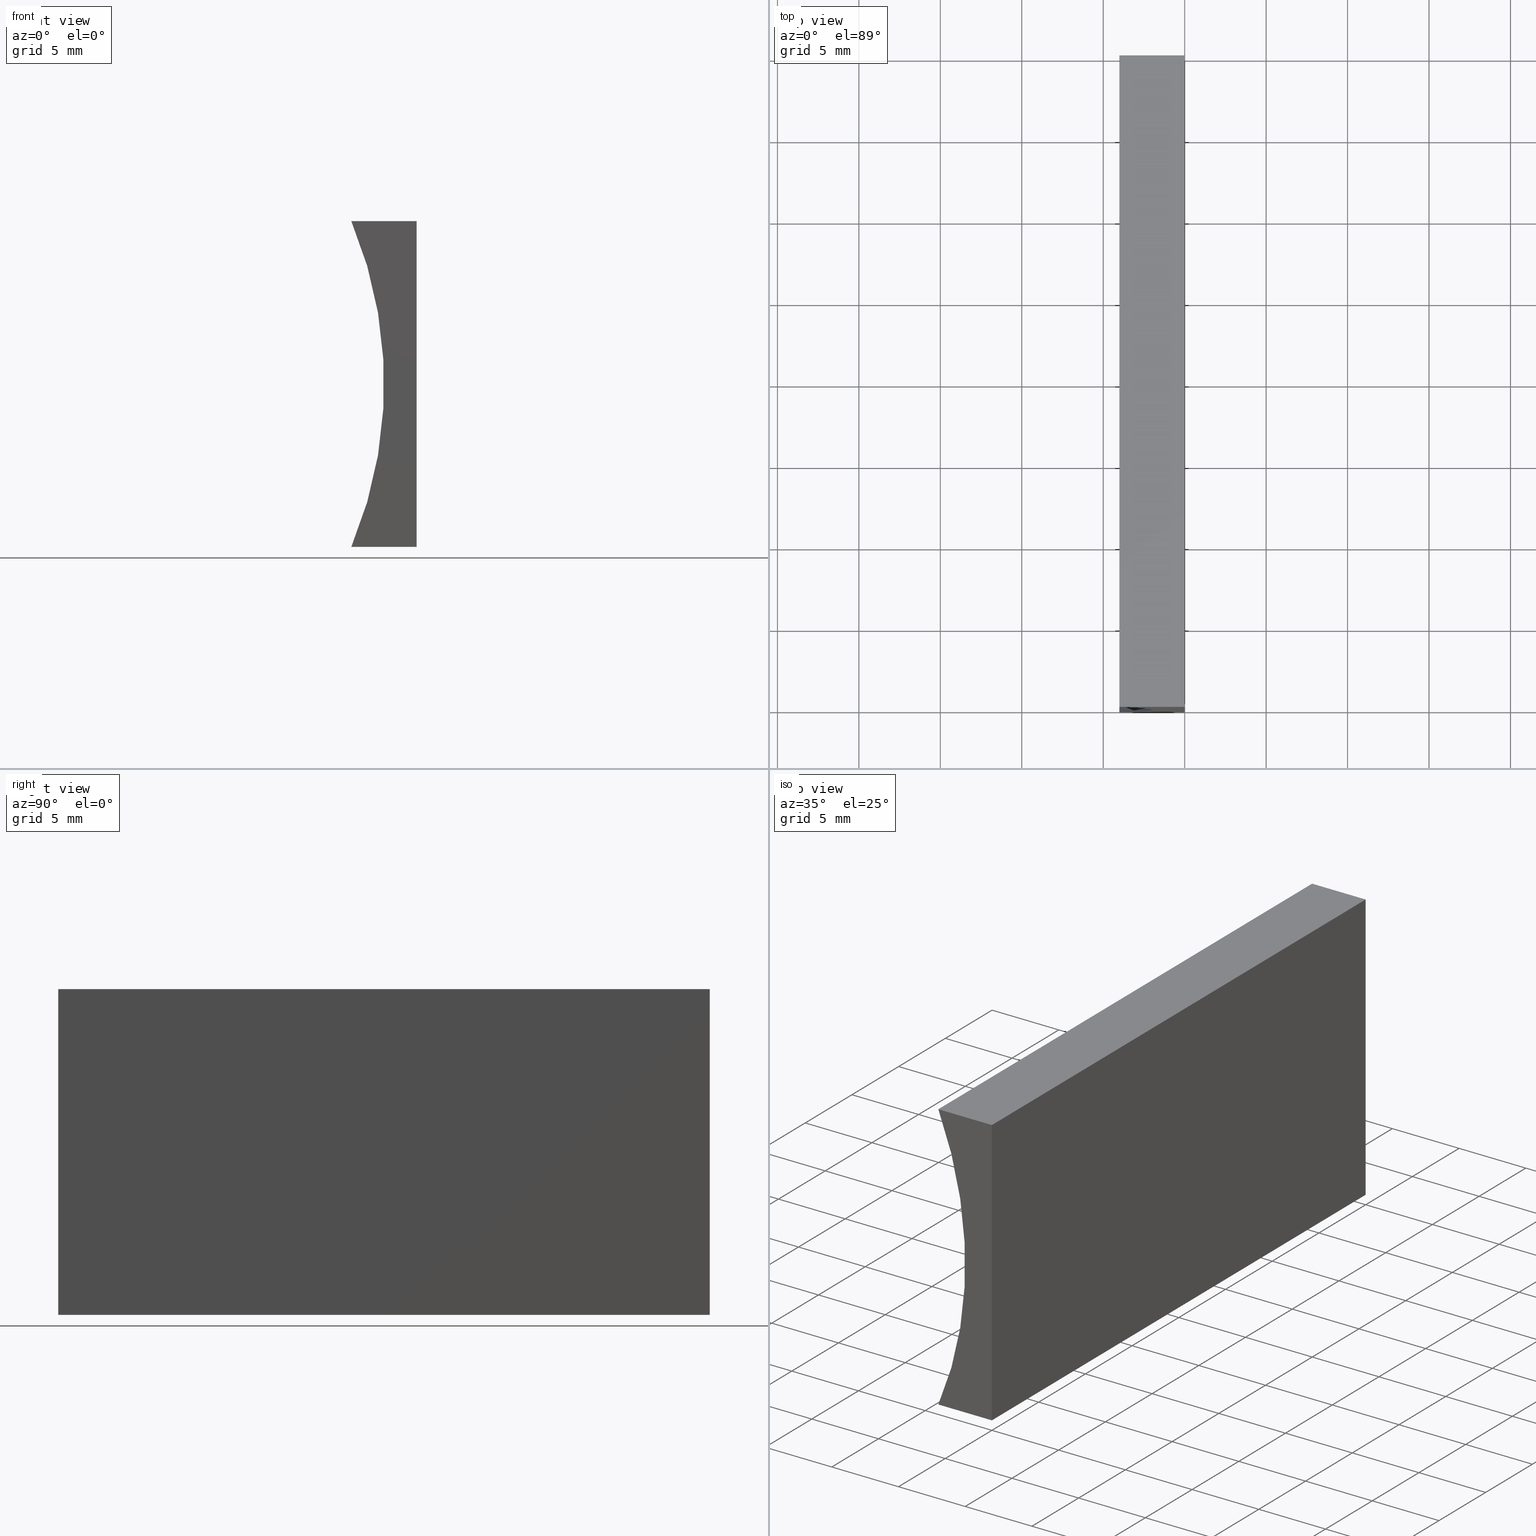
[diagram: canonical four-view strip — front | top / right | iso, engineering-drawing reading convention]
A machine part, canonical four-view strip (front | top / right | iso — engineering-drawing reading convention). The complete STEP part file that produces these views, byte-faithful:
ISO-10303-21;
HEADER;
FILE_DESCRIPTION (( 'STEP AP214' ),
    '1' );
FILE_NAME ('155355.STEP',
    '2019-06-28T06:38:43',
    ( 'user' ),
    ( '΢���й�' ),
    'SwSTEP 2.0',
    'SolidWorks 2016',
    '' );
FILE_SCHEMA (( 'AUTOMOTIVE_DESIGN' ));
ENDSEC;

DATA;
#1 = DIRECTION ( 'NONE',  ( 0.0000000000000000000, 0.0000000000000000000, 1.000000000000000000 ) ) ;
#2 = AXIS2_PLACEMENT_3D ( 'NONE', #64, #192, #1 ) ;
#3 = FILL_AREA_STYLE_COLOUR ( '', #142 ) ;
#4 = FILL_AREA_STYLE ('',( #3 ) ) ;
#5 = ORIENTED_EDGE ( 'NONE', *, *, #176, .T. ) ;
#6 = LINE ( 'NONE', #25, #141 ) ;
#7 =( LENGTH_UNIT ( ) NAMED_UNIT ( * ) SI_UNIT ( .MILLI., .METRE. ) );
#8 = PLANE ( 'NONE',  #158 ) ;
#9 = FACE_OUTER_BOUND ( 'NONE', #95, .T. ) ;
#10 = CARTESIAN_POINT ( 'NONE',  ( -4.012581935117213800, 40.00000000000000000, 5.204170427930421300E-015 ) ) ;
#11 = ORIENTED_EDGE ( 'NONE', *, *, #113, .T. ) ;
#12 = EDGE_CURVE ( 'NONE', #93, #101, #32, .T. ) ;
#13 = CLOSED_SHELL ( 'NONE', ( #177, #82, #87, #162, #129, #38 ) ) ;
#14 = PLANE ( 'NONE',  #71 ) ;
#15 = SURFACE_STYLE_FILL_AREA ( #4 ) ;
#16 = ORIENTED_EDGE ( 'NONE', *, *, #78, .F. ) ;
#17 = EDGE_CURVE ( 'NONE', #24, #190, #99, .T. ) ;
#18 = VECTOR ( 'NONE', #165, 1000.000000000000000 ) ;
#19 = LINE ( 'NONE', #198, #115 ) ;
#20 = AXIS2_PLACEMENT_3D ( 'NONE', #175, #92, #55 ) ;
#21 = CARTESIAN_POINT ( 'NONE',  ( 0.0000000000000000000, 40.00000000000000000, 0.0000000000000000000 ) ) ;
#22 = ORIENTED_EDGE ( 'NONE', *, *, #104, .F. ) ;
#23 = DIRECTION ( 'NONE',  ( 8.646420205378973500E-016, 0.0000000000000000000, -1.000000000000000000 ) ) ;
#24 = VERTEX_POINT ( 'NONE', #159 ) ;
#25 = CARTESIAN_POINT ( 'NONE',  ( -4.012581935117213000, 40.00000000000000000, 19.99999999999999600 ) ) ;
#26 = VERTEX_POINT ( 'NONE', #10 ) ;
#27 = DIRECTION ( 'NONE',  ( -1.000000000000000000, 0.0000000000000000000, 8.646420205378970500E-016 ) ) ;
#28 = CARTESIAN_POINT ( 'NONE',  ( -27.85000000000000100, 0.0000000000000000000, 10.00000000000000200 ) ) ;
#29 = ORIENTED_EDGE ( 'NONE', *, *, #201, .F. ) ;
#30 = PRESENTATION_STYLE_ASSIGNMENT (( #52 ) ) ;
#31 = DIRECTION ( 'NONE',  ( 0.0000000000000000000, 0.0000000000000000000, 1.000000000000000000 ) ) ;
#32 = LINE ( 'NONE', #202, #139 ) ;
#33 = EDGE_CURVE ( 'NONE', #26, #93, #80, .T. ) ;
#34 = CARTESIAN_POINT ( 'NONE',  ( 0.0000000000000000000, 40.00000000000000000, 0.0000000000000000000 ) ) ;
#35 = CYLINDRICAL_SURFACE ( 'NONE', #119, 25.85000000000000100 ) ;
#36 = APPLICATION_PROTOCOL_DEFINITION ( 'draft international standard', 'automotive_design', 1998, #67 ) ;
#37 = CARTESIAN_POINT ( 'NONE',  ( -27.85000000000000100, 40.00000000000000000, 10.00000000000000200 ) ) ;
#38 = ADVANCED_FACE ( 'NONE', ( #161 ), #14, .F. ) ;
#39 = ORIENTED_EDGE ( 'NONE', *, *, #113, .F. ) ;
#40 = ORIENTED_EDGE ( 'NONE', *, *, #86, .T. ) ;
#41 = SURFACE_STYLE_FILL_AREA ( #111 ) ;
#42 = CARTESIAN_POINT ( 'NONE',  ( 1.224646799147353300E-015, 40.00000000000000000, 20.00000000000000000 ) ) ;
#43 = SURFACE_SIDE_STYLE ('',( #15 ) ) ;
#44 = PRODUCT_DEFINITION_SHAPE ( 'NONE', 'NONE',  #183 ) ;
#45 = ORIENTED_EDGE ( 'NONE', *, *, #12, .F. ) ;
#46 = VECTOR ( 'NONE', #54, 1000.000000000000000 ) ;
#47 = AXIS2_PLACEMENT_3D ( 'NONE', #37, #50, #31 ) ;
#48 = ORIENTED_EDGE ( 'NONE', *, *, #170, .F. ) ;
#49 = ORIENTED_EDGE ( 'NONE', *, *, #79, .T. ) ;
#50 = DIRECTION ( 'NONE',  ( -0.0000000000000000000, -1.000000000000000000, -0.0000000000000000000 ) ) ;
#51 = CARTESIAN_POINT ( 'NONE',  ( 0.0000000000000000000, 0.0000000000000000000, 0.0000000000000000000 ) ) ;
#52 = SURFACE_STYLE_USAGE ( .BOTH. , #43 ) ;
#53 = AXIS2_PLACEMENT_3D ( 'NONE', #51, #116, #132 ) ;
#54 = DIRECTION ( 'NONE',  ( -6.123233995736766000E-017, -0.0000000000000000000, -1.000000000000000000 ) ) ;
#55 = DIRECTION ( 'NONE',  ( 0.0000000000000000000, -0.0000000000000000000, 1.000000000000000000 ) ) ;
#56 = ORIENTED_EDGE ( 'NONE', *, *, #79, .F. ) ;
#57 = ORIENTED_EDGE ( 'NONE', *, *, #86, .F. ) ;
#58 = DIRECTION ( 'NONE',  ( 0.0000000000000000000, -0.0000000000000000000, 1.000000000000000000 ) ) ;
#59 = DIRECTION ( 'NONE',  ( 6.123233995736766000E-017, 0.0000000000000000000, 1.000000000000000000 ) ) ;
#60 = UNCERTAINTY_MEASURE_WITH_UNIT (LENGTH_MEASURE( 1.000000000000000100E-005 ), #169, 'distance_accuracy_value', 'NONE');
#61 = EDGE_LOOP ( 'NONE', ( #88, #29, #114, #40 ) ) ;
#62 = APPLICATION_PROTOCOL_DEFINITION ( 'draft international standard', 'automotive_design', 1998, #65 ) ;
#63 = AXIS2_PLACEMENT_3D ( 'NONE', #143, #23, #98 ) ;
#64 = CARTESIAN_POINT ( 'NONE',  ( -27.85000000000000100, 0.0000000000000000000, 10.00000000000000200 ) ) ;
#65 = APPLICATION_CONTEXT ( 'automotive_design' ) ;
#66 = ORIENTED_EDGE ( 'NONE', *, *, #78, .T. ) ;
#67 = APPLICATION_CONTEXT ( 'automotive_design' ) ;
#68 =( NAMED_UNIT ( * ) PLANE_ANGLE_UNIT ( ) SI_UNIT ( $, .RADIAN. ) );
#69 = STYLED_ITEM ( 'NONE', ( #30 ), #171 ) ;
#70 = ORIENTED_EDGE ( 'NONE', *, *, #170, .T. ) ;
#71 = AXIS2_PLACEMENT_3D ( 'NONE', #28, #145, #58 ) ;
#72 = ORIENTED_EDGE ( 'NONE', *, *, #201, .T. ) ;
#73 = ORIENTED_EDGE ( 'NONE', *, *, #103, .T. ) ;
#74 =( NAMED_UNIT ( * ) PLANE_ANGLE_UNIT ( ) SI_UNIT ( $, .RADIAN. ) );
#75 = CARTESIAN_POINT ( 'NONE',  ( -4.012581935117213000, 0.0000000000000000000, 19.99999999999999600 ) ) ;
#76 = VECTOR ( 'NONE', #118, 1000.000000000000000 ) ;
#77 = PRODUCT_DEFINITION_CONTEXT ( 'detailed design', #67, 'design' ) ;
#78 = EDGE_CURVE ( 'NONE', #190, #200, #186, .T. ) ;
#79 = EDGE_CURVE ( 'NONE', #101, #173, #149, .T. ) ;
#80 = CIRCLE ( 'NONE', #47, 25.85000000000000500 ) ;
#81 = FACE_OUTER_BOUND ( 'NONE', #85, .T. ) ;
#82 = ADVANCED_FACE ( 'NONE', ( #146 ), #35, .F. ) ;
#83 = STYLED_ITEM ( 'NONE', ( #157 ), #193 ) ;
#84 = ORIENTED_EDGE ( 'NONE', *, *, #33, .T. ) ;
#85 = EDGE_LOOP ( 'NONE', ( #11, #130, #56, #5 ) ) ;
#86 = EDGE_CURVE ( 'NONE', #26, #24, #184, .T. ) ;
#87 = ADVANCED_FACE ( 'NONE', ( #102 ), #182, .F. ) ;
#88 = ORIENTED_EDGE ( 'NONE', *, *, #17, .T. ) ;
#89 = CARTESIAN_POINT ( 'NONE',  ( 0.0000000000000000000, 40.00000000000000000, 0.0000000000000000000 ) ) ;
#90 = CARTESIAN_POINT ( 'NONE',  ( 0.0000000000000000000, 0.0000000000000000000, 0.0000000000000000000 ) ) ;
#91 = DIRECTION ( 'NONE',  ( 1.000000000000000000, -0.0000000000000000000, 8.646420205378973500E-016 ) ) ;
#92 = DIRECTION ( 'NONE',  ( 0.0000000000000000000, 1.000000000000000000, 0.0000000000000000000 ) ) ;
#93 = VERTEX_POINT ( 'NONE', #108 ) ;
#94 = PRODUCT_DEFINITION_FORMATION_WITH_SPECIFIED_SOURCE ( '�κ�', '', #166, .NOT_KNOWN. ) ;
#95 = EDGE_LOOP ( 'NONE', ( #70, #84, #126, #49 ) ) ;
#96 = UNCERTAINTY_MEASURE_WITH_UNIT (LENGTH_MEASURE( 1.000000000000000100E-005 ), #97, 'distance_accuracy_value', 'NONE');
#97 =( LENGTH_UNIT ( ) NAMED_UNIT ( * ) SI_UNIT ( .MILLI., .METRE. ) );
#98 = DIRECTION ( 'NONE',  ( -1.000000000000000000, 0.0000000000000000000, -8.646420205378973500E-016 ) ) ;
#99 = CIRCLE ( 'NONE', #2, 25.85000000000000500 ) ;
#100 = MECHANICAL_DESIGN_GEOMETRIC_PRESENTATION_REPRESENTATION (  '', ( #83 ), #124 ) ;
#101 = VERTEX_POINT ( 'NONE', #42 ) ;
#102 = FACE_OUTER_BOUND ( 'NONE', #178, .T. ) ;
#103 = EDGE_CURVE ( 'NONE', #173, #131, #144, .T. ) ;
#104 = EDGE_CURVE ( 'NONE', #131, #24, #153, .T. ) ;
#105 = DIRECTION ( 'NONE',  ( 8.646420205378970500E-016, -0.0000000000000000000, 1.000000000000000000 ) ) ;
#106 = PRESENTATION_LAYER_ASSIGNMENT (  '', '', ( #83 ) ) ;
#107 = VECTOR ( 'NONE', #160, 1000.000000000000000 ) ;
#108 = CARTESIAN_POINT ( 'NONE',  ( -4.012581935117213000, 40.00000000000000000, 19.99999999999999600 ) ) ;
#109 = SURFACE_STYLE_USAGE ( .BOTH. , #128 ) ;
#110 = EDGE_LOOP ( 'NONE', ( #179, #57, #48, #73 ) ) ;
#111 = FILL_AREA_STYLE ('',( #172 ) ) ;
#112 = DIRECTION ( 'NONE',  ( -0.0000000000000000000, -1.000000000000000000, -0.0000000000000000000 ) ) ;
#113 = EDGE_CURVE ( 'NONE', #200, #131, #156, .T. ) ;
#114 = ORIENTED_EDGE ( 'NONE', *, *, #33, .F. ) ;
#115 = VECTOR ( 'NONE', #140, 1000.000000000000000 ) ;
#116 = DIRECTION ( 'NONE',  ( 0.0000000000000000000, 0.0000000000000000000, 1.000000000000000000 ) ) ;
#117 = PRODUCT_CONTEXT ( 'NONE', #65, 'mechanical' ) ;
#118 = DIRECTION ( 'NONE',  ( -0.0000000000000000000, -1.000000000000000000, -0.0000000000000000000 ) ) ;
#119 = AXIS2_PLACEMENT_3D ( 'NONE', #150, #180, #125 ) ;
#120 =( NAMED_UNIT ( * ) PLANE_ANGLE_UNIT ( ) SI_UNIT ( $, .RADIAN. ) );
#121 = CARTESIAN_POINT ( 'NONE',  ( 1.224646799147353300E-015, 40.00000000000000000, 20.00000000000000000 ) ) ;
#122 = ORIENTED_EDGE ( 'NONE', *, *, #176, .F. ) ;
#123 = DIRECTION ( 'NONE',  ( 1.000000000000000000, -0.0000000000000000000, 8.646420205378973500E-016 ) ) ;
#124 =( GEOMETRIC_REPRESENTATION_CONTEXT ( 3 ) GLOBAL_UNCERTAINTY_ASSIGNED_CONTEXT ( ( #60 ) ) GLOBAL_UNIT_ASSIGNED_CONTEXT ( ( #169, #68, #196 ) ) REPRESENTATION_CONTEXT ( 'NONE', 'WORKASPACE' ) );
#125 = DIRECTION ( 'NONE',  ( 0.0000000000000000000, 0.0000000000000000000, -1.000000000000000000 ) ) ;
#126 = ORIENTED_EDGE ( 'NONE', *, *, #12, .T. ) ;
#127 = VECTOR ( 'NONE', #148, 1000.000000000000000 ) ;
#128 = SURFACE_SIDE_STYLE ('',( #41 ) ) ;
#129 = ADVANCED_FACE ( 'NONE', ( #9 ), #191, .T. ) ;
#130 = ORIENTED_EDGE ( 'NONE', *, *, #103, .F. ) ;
#131 = VERTEX_POINT ( 'NONE', #90 ) ;
#132 = DIRECTION ( 'NONE',  ( 1.000000000000000000, 0.0000000000000000000, 0.0000000000000000000 ) ) ;
#133 = VECTOR ( 'NONE', #91, 1000.000000000000000 ) ;
#134 = DIRECTION ( 'NONE',  ( -1.000000000000000000, 0.0000000000000000000, 6.123233995736766000E-017 ) ) ;
#135 = AXIS2_PLACEMENT_3D ( 'NONE', #147, #105, #155 ) ;
#136 = CARTESIAN_POINT ( 'NONE',  ( 1.224646799147353300E-015, 0.0000000000000000000, 20.00000000000000000 ) ) ;
#137 =( GEOMETRIC_REPRESENTATION_CONTEXT ( 3 ) GLOBAL_UNCERTAINTY_ASSIGNED_CONTEXT ( ( #96 ) ) GLOBAL_UNIT_ASSIGNED_CONTEXT ( ( #97, #120, #195 ) ) REPRESENTATION_CONTEXT ( 'NONE', 'WORKASPACE' ) );
#138 = COLOUR_RGB ( '',1.000000000000000000, 1.000000000000000000, 1.000000000000000000 ) ;
#139 = VECTOR ( 'NONE', #123, 1000.000000000000000 ) ;
#140 = DIRECTION ( 'NONE',  ( -1.000000000000000000, 0.0000000000000000000, 8.646420205378970500E-016 ) ) ;
#141 = VECTOR ( 'NONE', #112, 1000.000000000000000 ) ;
#142 = COLOUR_RGB ( '',1.000000000000000000, 1.000000000000000000, 1.000000000000000000 ) ;
#143 = CARTESIAN_POINT ( 'NONE',  ( 1.224646799147353300E-015, 40.00000000000000000, 20.00000000000000000 ) ) ;
#144 = LINE ( 'NONE', #21, #76 ) ;
#145 = DIRECTION ( 'NONE',  ( 0.0000000000000000000, 1.000000000000000000, 0.0000000000000000000 ) ) ;
#146 = FACE_OUTER_BOUND ( 'NONE', #61, .T. ) ;
#147 = CARTESIAN_POINT ( 'NONE',  ( 0.0000000000000000000, 40.00000000000000000, 0.0000000000000000000 ) ) ;
#148 = DIRECTION ( 'NONE',  ( -0.0000000000000000000, -1.000000000000000000, -0.0000000000000000000 ) ) ;
#149 = LINE ( 'NONE', #34, #18 ) ;
#150 = CARTESIAN_POINT ( 'NONE',  ( -27.85000000000000100, 40.00000000000000000, 10.00000000000000200 ) ) ;
#151 = MECHANICAL_DESIGN_GEOMETRIC_PRESENTATION_REPRESENTATION (  '', ( #69 ), #152 ) ;
#152 =( GEOMETRIC_REPRESENTATION_CONTEXT ( 3 ) GLOBAL_UNCERTAINTY_ASSIGNED_CONTEXT ( ( #154 ) ) GLOBAL_UNIT_ASSIGNED_CONTEXT ( ( #7, #74, #163 ) ) REPRESENTATION_CONTEXT ( 'NONE', 'WORKASPACE' ) );
#153 = LINE ( 'NONE', #174, #197 ) ;
#154 = UNCERTAINTY_MEASURE_WITH_UNIT (LENGTH_MEASURE( 1.000000000000000100E-005 ), #7, 'distance_accuracy_value', 'NONE');
#155 = DIRECTION ( 'NONE',  ( 1.000000000000000000, 0.0000000000000000000, -8.646420205378970500E-016 ) ) ;
#156 = LINE ( 'NONE', #194, #46 ) ;
#157 = PRESENTATION_STYLE_ASSIGNMENT (( #109 ) ) ;
#158 = AXIS2_PLACEMENT_3D ( 'NONE', #164, #134, #59 ) ;
#159 = CARTESIAN_POINT ( 'NONE',  ( -4.012581935117213800, 0.0000000000000000000, 5.204170427930421300E-015 ) ) ;
#160 = DIRECTION ( 'NONE',  ( -0.0000000000000000000, -1.000000000000000000, -0.0000000000000000000 ) ) ;
#161 = FACE_OUTER_BOUND ( 'NONE', #185, .T. ) ;
#162 = ADVANCED_FACE ( 'NONE', ( #81 ), #8, .F. ) ;
#163 =( NAMED_UNIT ( * ) SI_UNIT ( $, .STERADIAN. ) SOLID_ANGLE_UNIT ( ) );
#164 = CARTESIAN_POINT ( 'NONE',  ( 0.0000000000000000000, 40.00000000000000000, 0.0000000000000000000 ) ) ;
#165 = DIRECTION ( 'NONE',  ( -6.123233995736766000E-017, -0.0000000000000000000, -1.000000000000000000 ) ) ;
#166 = PRODUCT ( '155355', '155355', '', ( #117 ) ) ;
#167 = FACE_OUTER_BOUND ( 'NONE', #110, .T. ) ;
#168 = CARTESIAN_POINT ( 'NONE',  ( -4.012581935117213800, 40.00000000000000000, 5.204170427930421300E-015 ) ) ;
#169 =( LENGTH_UNIT ( ) NAMED_UNIT ( * ) SI_UNIT ( .MILLI., .METRE. ) );
#170 = EDGE_CURVE ( 'NONE', #173, #26, #19, .T. ) ;
#171 = MANIFOLD_SOLID_BREP ( '͹̨-����1', #13 ) ;
#172 = FILL_AREA_STYLE_COLOUR ( '', #138 ) ;
#173 = VERTEX_POINT ( 'NONE', #89 ) ;
#174 = CARTESIAN_POINT ( 'NONE',  ( 0.0000000000000000000, 0.0000000000000000000, 0.0000000000000000000 ) ) ;
#175 = CARTESIAN_POINT ( 'NONE',  ( -27.85000000000000100, 40.00000000000000000, 10.00000000000000200 ) ) ;
#176 = EDGE_CURVE ( 'NONE', #101, #200, #204, .T. ) ;
#177 = ADVANCED_FACE ( 'NONE', ( #167 ), #189, .F. ) ;
#178 = EDGE_LOOP ( 'NONE', ( #66, #122, #45, #72 ) ) ;
#179 = ORIENTED_EDGE ( 'NONE', *, *, #104, .T. ) ;
#180 = DIRECTION ( 'NONE',  ( -0.0000000000000000000, -1.000000000000000000, -0.0000000000000000000 ) ) ;
#181 = CARTESIAN_POINT ( 'NONE',  ( 1.224646799147353300E-015, 0.0000000000000000000, 20.00000000000000000 ) ) ;
#182 = PLANE ( 'NONE',  #63 ) ;
#183 = PRODUCT_DEFINITION ( 'δ֪', '', #94, #77 ) ;
#184 = LINE ( 'NONE', #168, #127 ) ;
#185 = EDGE_LOOP ( 'NONE', ( #22, #39, #16, #188 ) ) ;
#186 = LINE ( 'NONE', #136, #133 ) ;
#187 = SHAPE_DEFINITION_REPRESENTATION ( #44, #193 ) ;
#188 = ORIENTED_EDGE ( 'NONE', *, *, #17, .F. ) ;
#189 = PLANE ( 'NONE',  #135 ) ;
#190 = VERTEX_POINT ( 'NONE', #75 ) ;
#191 = PLANE ( 'NONE',  #20 ) ;
#192 = DIRECTION ( 'NONE',  ( -0.0000000000000000000, -1.000000000000000000, -0.0000000000000000000 ) ) ;
#193 = ADVANCED_BREP_SHAPE_REPRESENTATION ( '155355', ( #171, #53 ), #137 ) ;
#194 = CARTESIAN_POINT ( 'NONE',  ( 0.0000000000000000000, 0.0000000000000000000, 0.0000000000000000000 ) ) ;
#195 =( NAMED_UNIT ( * ) SI_UNIT ( $, .STERADIAN. ) SOLID_ANGLE_UNIT ( ) );
#196 =( NAMED_UNIT ( * ) SI_UNIT ( $, .STERADIAN. ) SOLID_ANGLE_UNIT ( ) );
#197 = VECTOR ( 'NONE', #27, 1000.000000000000000 ) ;
#198 = CARTESIAN_POINT ( 'NONE',  ( 0.0000000000000000000, 40.00000000000000000, 0.0000000000000000000 ) ) ;
#199 = PRODUCT_RELATED_PRODUCT_CATEGORY ( 'part', '', ( #166 ) ) ;
#200 = VERTEX_POINT ( 'NONE', #181 ) ;
#201 = EDGE_CURVE ( 'NONE', #93, #190, #6, .T. ) ;
#202 = CARTESIAN_POINT ( 'NONE',  ( 1.224646799147353300E-015, 40.00000000000000000, 20.00000000000000000 ) ) ;
#203 = PRESENTATION_LAYER_ASSIGNMENT (  '', '', ( #69 ) ) ;
#204 = LINE ( 'NONE', #121, #107 ) ;
ENDSEC;
END-ISO-10303-21;
